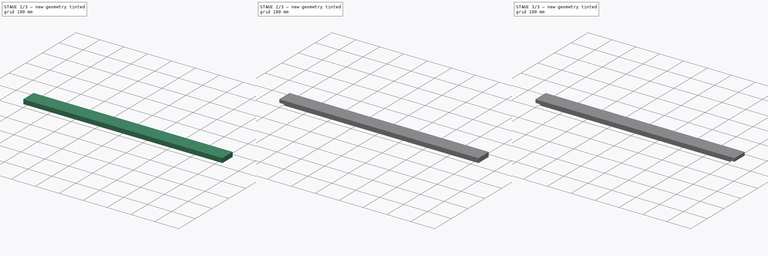
[diagram: build sequence overview — one tinted view per stage of 3, left to right]
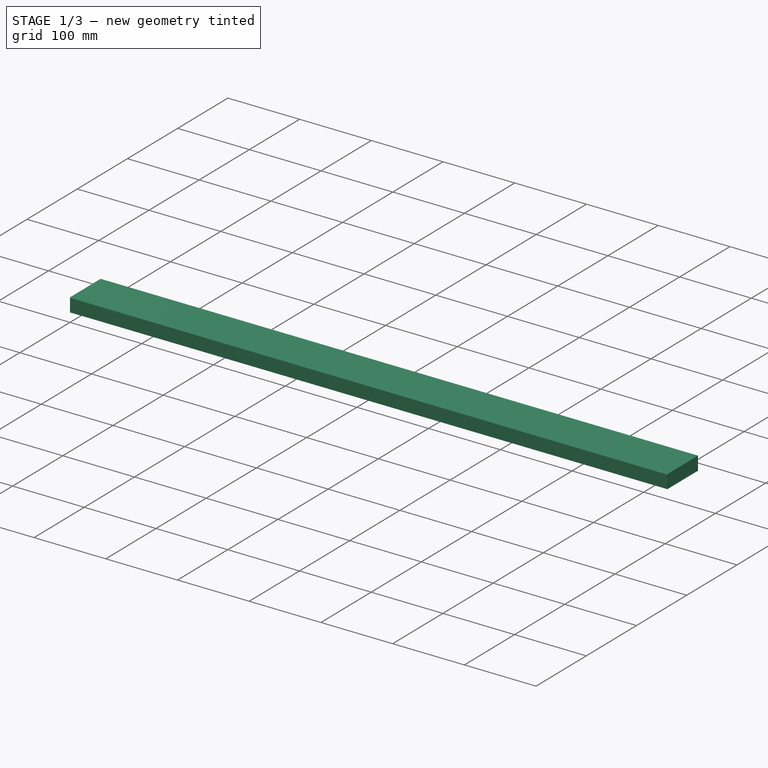
[diagram: stage 1 of 3 — iso view after this stage's code; geometry added in this stage tinted green]
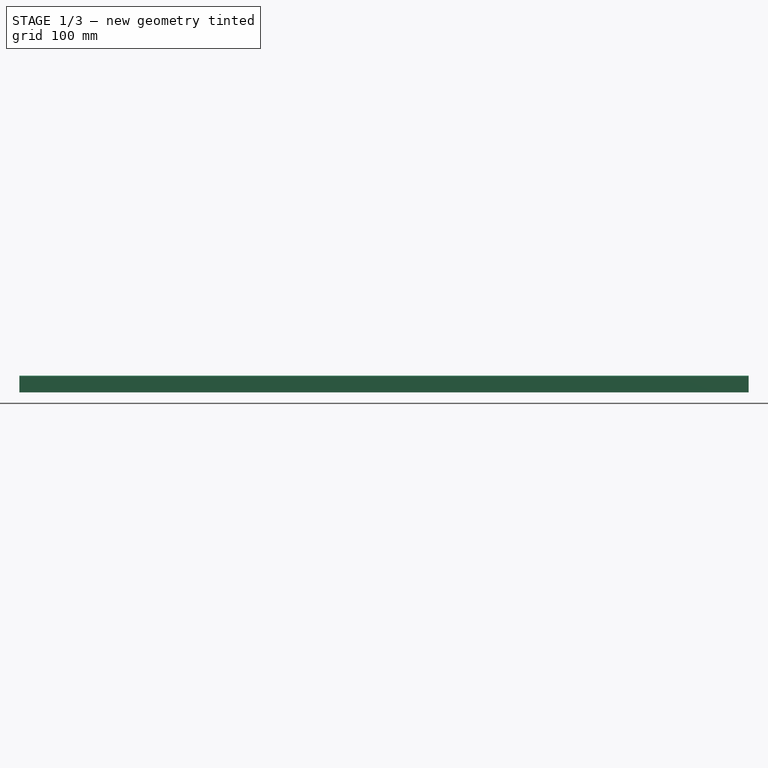
[diagram: stage 1 of 3 — front view after this stage's code; geometry added in this stage tinted green]
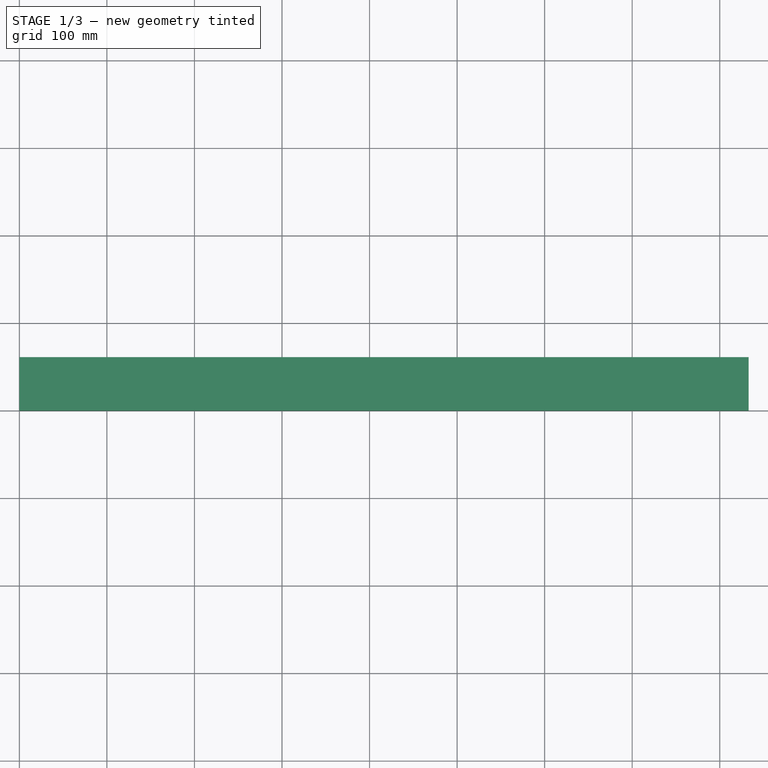
[diagram: stage 1 of 3 — top view after this stage's code; geometry added in this stage tinted green]
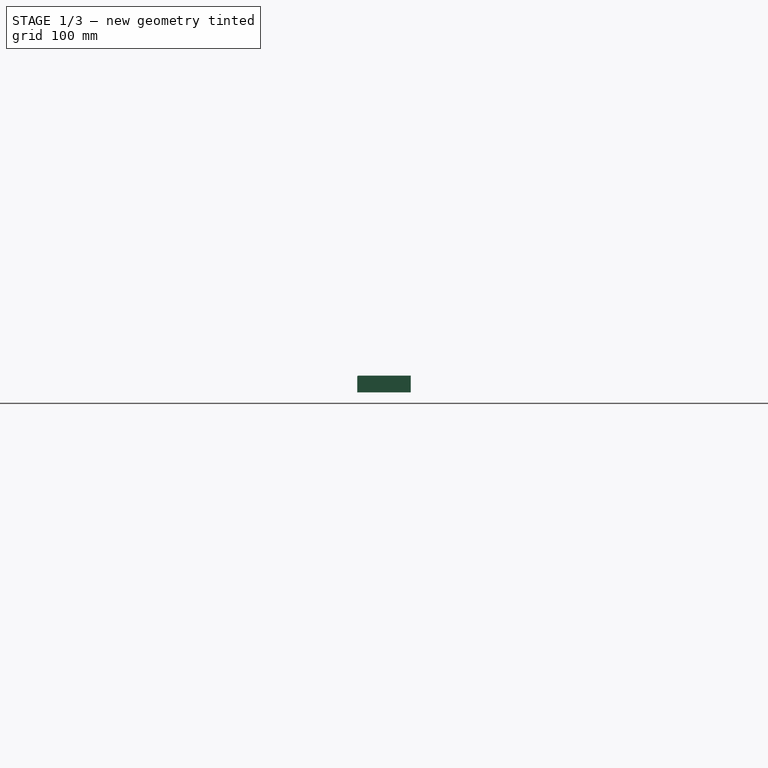
[diagram: stage 1 of 3 — right view after this stage's code; geometry added in this stage tinted green]
FCSTD DOCUMENT  (FreeCAD 0.20R29603 (Git))
Label: PortePartition
License: All rights reserved
LicenseURL: http://en.wikipedia.org/wiki/All_rights_reserved
objects: Drawing::FeatureViewPython×11, Drawing::FeatureViewPart×4, Part::Fillet×2, Sketcher::SketchObject×2, PartDesign::Pocket×2, Part::Box×1, PartDesign::Fillet×1, Drawing::FeaturePage×1
note: 11 computed .brp shape members not serialized (recipe doc carries the construction recipe); baked Part::Feature solids carry a one-line shape summary decoded from their .brp

FEATURE [Part::Box] Box  label="Cube"
  AttacherType = Attacher::AttachEngine3D
  Height = 19
  Length = 833
  Width = 61
FEATURE [Part::Fillet] Fillet
  Base = -> Box
  Edges = 1 edges r=1: [Edge10]
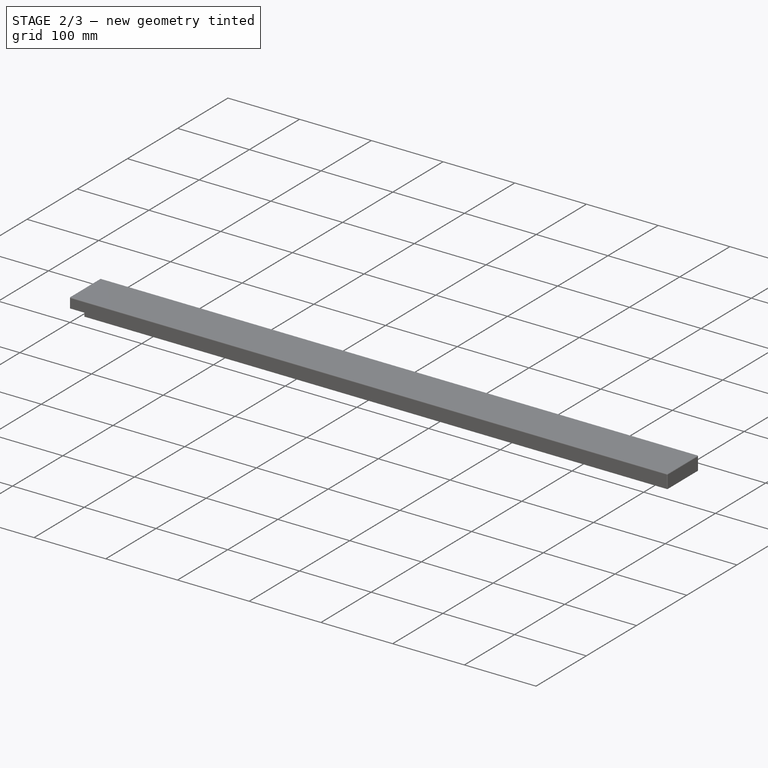
[diagram: stage 2 of 3 — iso view after this stage's code; geometry added in this stage tinted green]
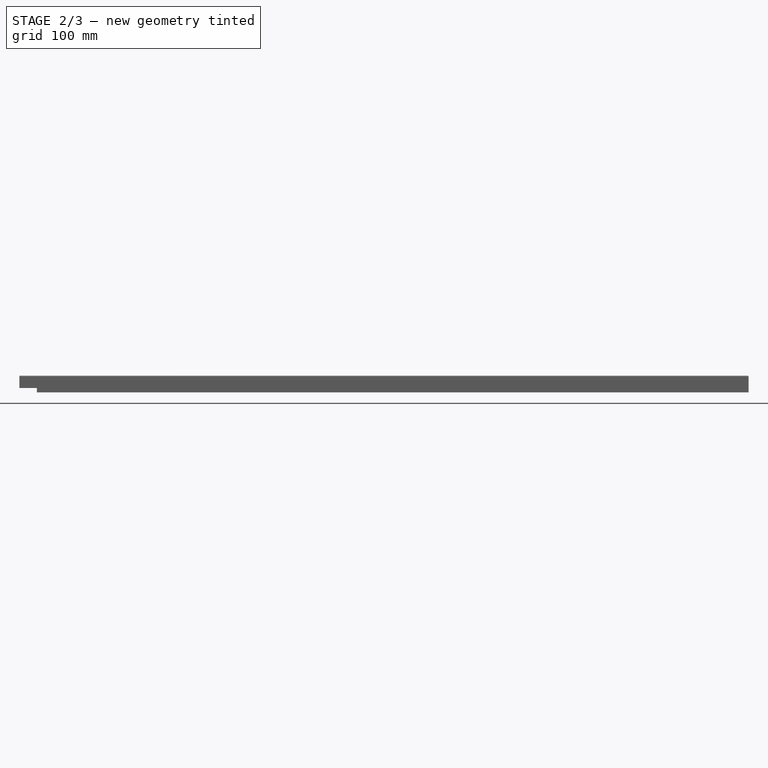
[diagram: stage 2 of 3 — front view after this stage's code; geometry added in this stage tinted green]
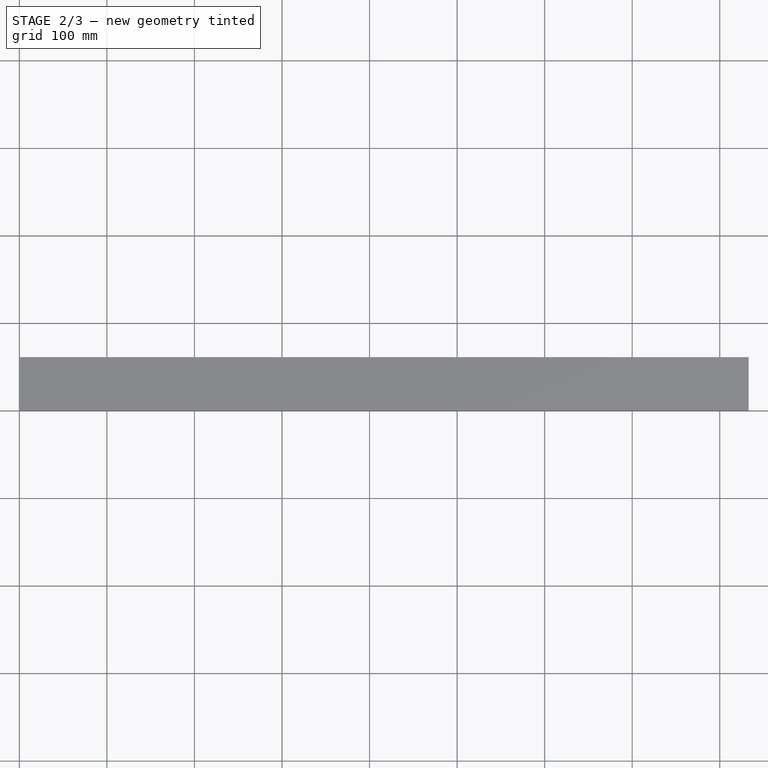
[diagram: stage 2 of 3 — top view after this stage's code; geometry added in this stage tinted green]
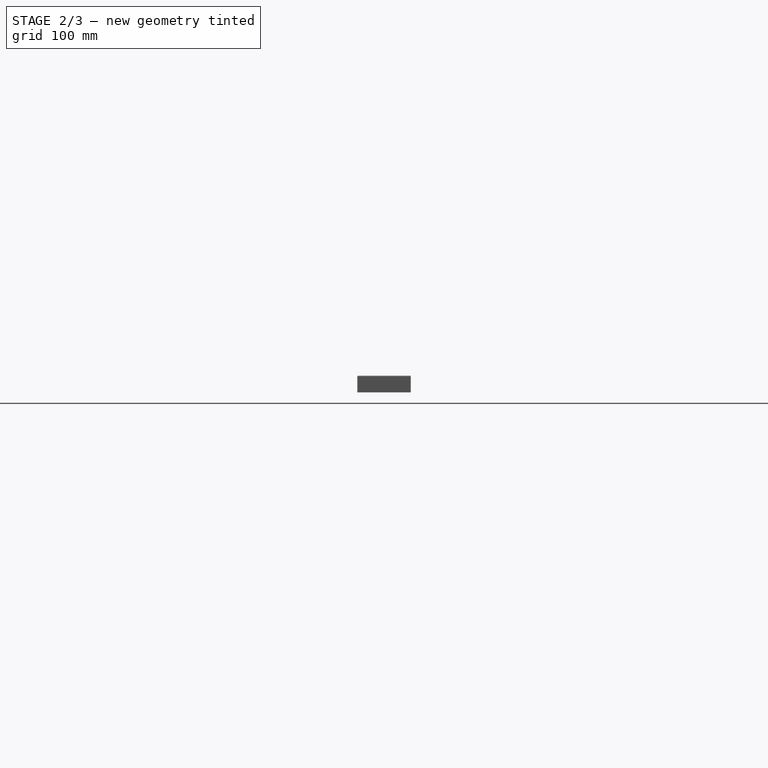
[diagram: stage 2 of 3 — right view after this stage's code; geometry added in this stage tinted green]
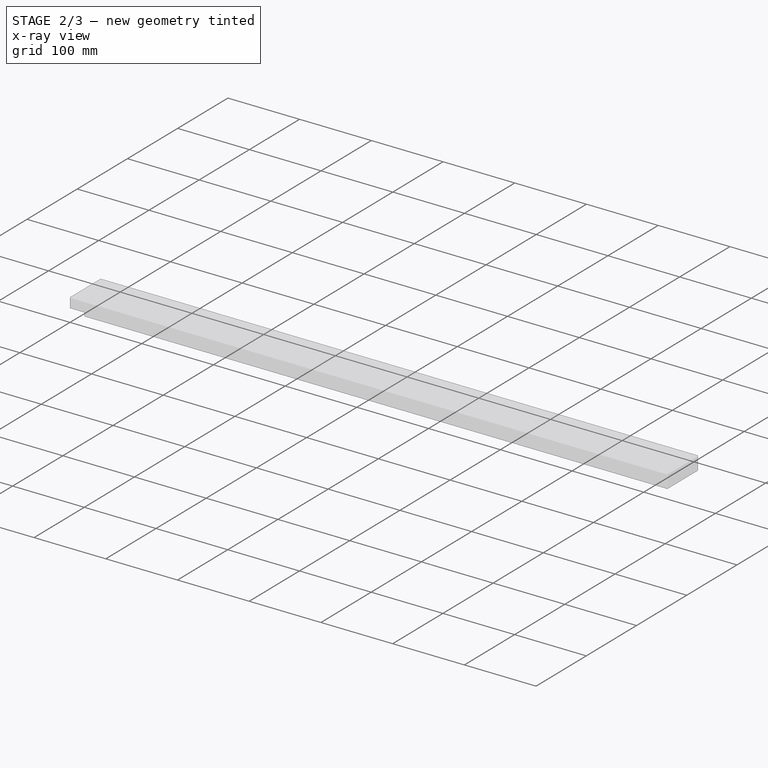
[diagram: stage 2 of 3 — x-ray composite at the iso view; earlier geometry ghosted, this stage's added geometry solid]
FEATURE [Part::Fillet] Fillet001
  Base = -> Fillet
  Edges = 1 edges r=1: [Edge14]
FEATURE [Sketcher::SketchObject] Sketch
  FullyConstrained = true
  MapMode = 5
  Placement = pos=(0,0,0) rot=(1,0,0;3.14159rad)
  Support = -> [Fillet001]
  sketch-geometry (4):
    g0: LineSegment StartX=0 StartY=0 StartZ=0 EndX=20 EndY=0 EndZ=0
    g1: LineSegment StartX=20 StartY=0 StartZ=0 EndX=20 EndY=-63 EndZ=0
    g2: LineSegment StartX=20 StartY=-63 StartZ=0 EndX=0 EndY=-63 EndZ=0
    g3: LineSegment StartX=0 StartY=-63 StartZ=0 EndX=0 EndY=0 EndZ=0
  constraints (11):
    c: Coincident(g0,g1)
    c: Coincident(g1,g2)
    c: Coincident(g2,g3)
    c: Coincident(g3,g0)
    c: Horizontal(g0)
    c: Horizontal(g2)
    c: Vertical(g1)
    c: Vertical(g3)
    c: Coincident(g0,g-1)
    c: DistanceY(g1,g1) = 63
    c: DistanceX(g2,g2) = 20
FEATURE [PartDesign::Pocket] Pocket
  AllowMultiFace = false
  Direction = (0,0,1)
  Length = 5
  Length2 = 100
  Profile = -> Sketch
  Refine = true
  Type = 0
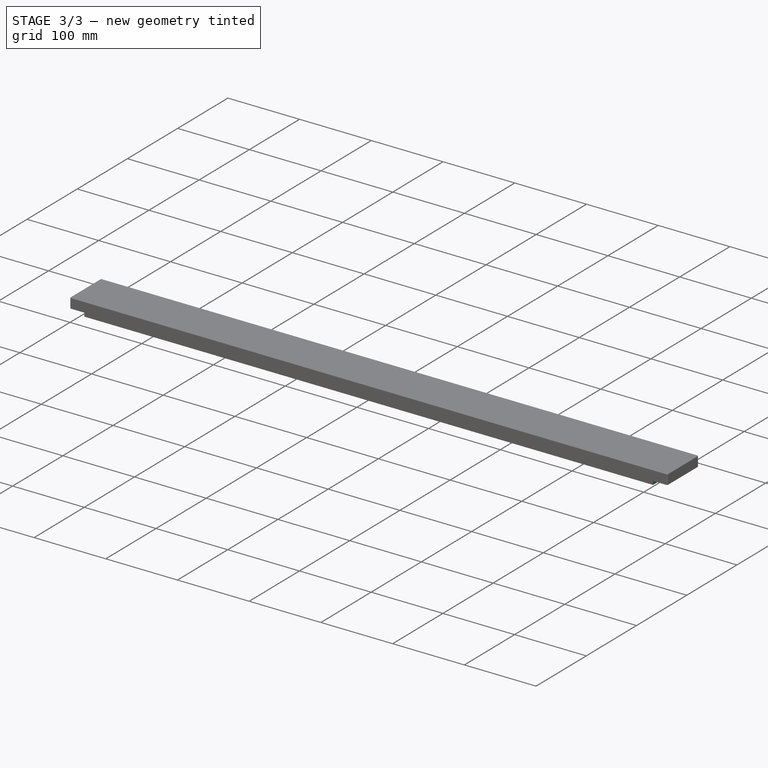
[diagram: stage 3 of 3 — iso view after this stage's code; geometry added in this stage tinted green]
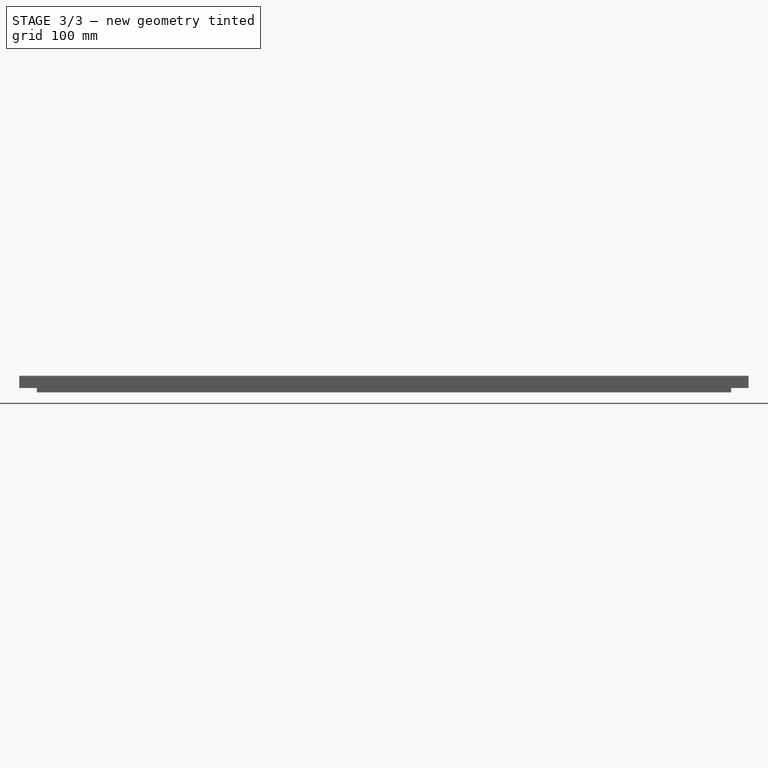
[diagram: stage 3 of 3 — front view after this stage's code; geometry added in this stage tinted green]
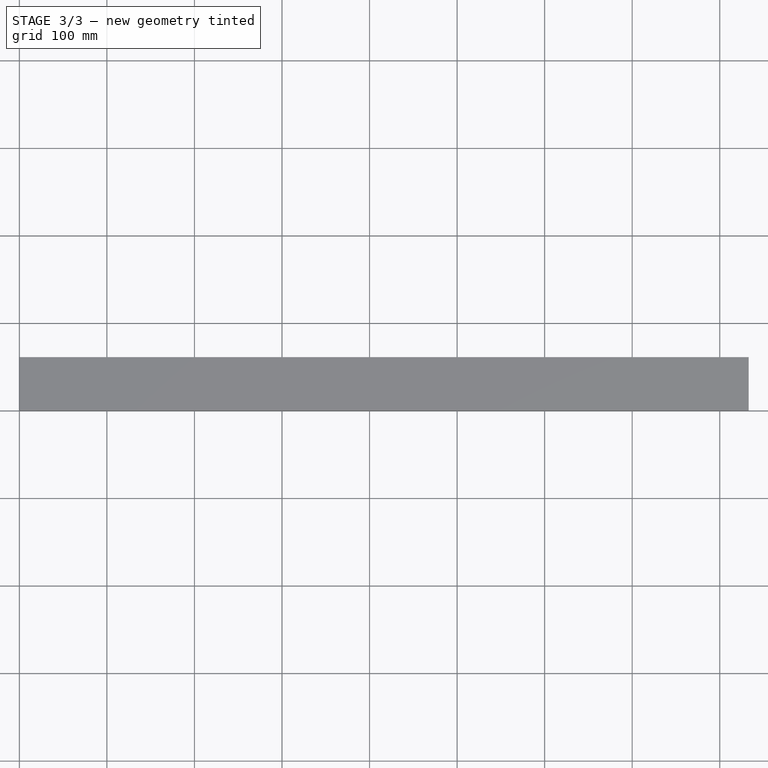
[diagram: stage 3 of 3 — top view after this stage's code; geometry added in this stage tinted green]
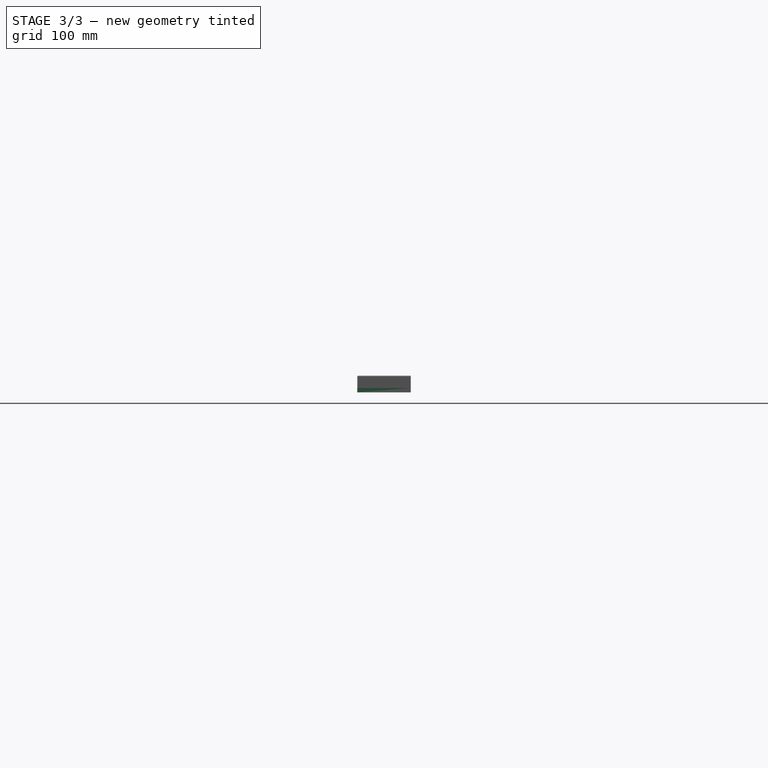
[diagram: stage 3 of 3 — right view after this stage's code; geometry added in this stage tinted green]
FEATURE [Sketcher::SketchObject] Sketch001
  FullyConstrained = true
  MapMode = 5
  Placement = pos=(0,0,0) rot=(1,0,0;3.14159rad)
  Support = -> [Pocket]
  sketch-geometry (4):
    g0: LineSegment StartX=813 StartY=0 StartZ=0 EndX=833 EndY=0 EndZ=0
    g1: LineSegment StartX=833 StartY=0 StartZ=0 EndX=833 EndY=-63 EndZ=0
    g2: LineSegment StartX=833 StartY=-63 StartZ=0 EndX=813 EndY=-63 EndZ=0
    g3: LineSegment StartX=813 StartY=-63 StartZ=0 EndX=813 EndY=0 EndZ=0
  constraints (12):
    c: Coincident(g0,g1)
    c: Coincident(g1,g2)
    c: Coincident(g2,g3)
    c: Coincident(g3,g0)
    c: Horizontal(g0)
    c: Horizontal(g2)
    c: Vertical(g1)
    c: Vertical(g3)
    c: DistanceY(g0,g-1) = 0
    c: DistanceY(g1,g1) = 63
    c: DistanceX(g2,g2) = 20
    c: DistanceX(g-1,g0) = 813
FEATURE [PartDesign::Pocket] Pocket001
  AllowMultiFace = false
  Direction = (0,0,1)
  Length = 5
  Length2 = 100
  Profile = -> Sketch001
  Refine = true
  Type = 0
FEATURE [PartDesign::Fillet] Fillet002
  Base = -> Pocket001 [Edge2]
  Radius = 1
  SupportTransform = false
  UseAllEdges = false
FEATURE [Drawing::FeatureViewPart] Ortho  label="Ortho_0_0"
  Direction = (0,0,1)
  HiddenWidth = 0.15
  LineWidth = 0.35
  Rotation = 0
  Scale = 0.25
  ShowHiddenLines = false
  ShowSmoothLines = true
  Source = -> Fillet002
  Tolerance = 0.05
  ViewResult = <blob: 2794 chars omitted>
  Visible = false
  X = 31.4167
  Y = 74.8
FEATURE [Drawing::FeatureViewPart] Ortho001  label="Ortho_0_1"
  Direction = (0,-1,0)
  HiddenWidth = 0.15
  LineWidth = 0.35
  Rotation = 90
  Scale = 0.25
  ShowHiddenLines = false
  ShowSmoothLines = true
  Source = -> Fillet002
  Tolerance = 0.05
  ViewResult = <blob: 2636 chars omitted>
  Visible = false
  X = 31.4167
  Y = 36.9
FEATURE [Drawing::FeatureViewPart] Ortho002  label="Ortho_0_-2"
  Direction = (0,0,-1)
  HiddenWidth = 0.15
  LineWidth = 0.35
  Rotation = 180
  Scale = 0.25
  ShowHiddenLines = false
  ShowSmoothLines = true
  Source = -> Fillet002
  Tolerance = 0.05
  ViewResult = <g id="Ortho_0_-2"\n   transform="rotate(180,31.4167,124.1) translate(31.4167,124.1) scale(0.25,0.25)"\n  >\n<g   fill="none"\n   stroke="rgb(0, 0, 0)"\n   stroke-linecap="butt"\n   stroke-linejoin="miter"\n   stroke-width="1.400000"\n   transform="scale(1,-1)"\n  >\n<path id= "1" d=" M -1 0 L -20 0 " />\n<path id= "2" d=" M -813 0 L -832 0 " />\n<path id= "3" d=" M -20 0 L -813 0 " />\n<path d="M-1 -2.22045e-16 A1 1 0 0 1 2.22045e-16 1" /><path d="M-832 -2.22045e-16 A1 1 0 0 0 -833 1" /><path id= "6" d=" M 0 61 L 0 1 " />\n<path id= "7" d=" M 0 61 L -20 61 " />\n<path id= "8" d=" M -813 61 L -833 61 " />\n<path id= "9" d=" M -833 1 L -833 61 " />\n<path id= "10" d=" M -20 0 L -20 61 " />\n<path id= "11" d=" M -813 61 L -813 0 " />\n<path id= "12" d=" M -20 61 L -813 61 " />\n</g>\n</g>
  Visible = false
  X = 31.4167
  Y = 124.1
FEATURE [Drawing::FeatureViewPart] Ortho003  label="Ortho_1_0"
  Direction = (-1,0,0)
  HiddenWidth = 0.15
  LineWidth = 0.35
  Rotation = 180
  Scale = 0.25
  ShowHiddenLines = false
  ShowSmoothLines = true
  Source = -> Fillet002
  Tolerance = 0.05
  ViewResult = <blob: 2631 chars omitted>
  Visible = false
  X = 261.083
  Y = 74.8
FEATURE [Drawing::FeatureViewPython] dim001  # drawing view (typed FeaturePython)
  Rotation = 0
  ViewResult = <g> \n  <line x1="31.416700" y1="141.850000" x2="31.416700" y2="151.417742" style="stroke:rgb(0,0,255);stroke-width:0.30" />\n<line x1="239.666700" y1="141.850000" x2="239.666700" y2="151.417742" style="stroke:rgb(0,0,255);stroke-width:0.30" />\n<line x1="31.416700" y1="150.417742" x2="239.666700" y2="150.417742" style="stroke:rgb(0,0,255);stroke-width:0.30" /> \n  <polygon points="239.666700,150.417742 236.666700,149.417742 235.666700,150.417742 236.666700,151.417742" style="fill:rgb(0,0,255);stroke:rgb(0,0,255);stroke-width:0" /><polygon points="31.416700,150.417742 34.416700,151.417742 35.416700,150.417742 34.416700,149.417742" style="fill:rgb(0,0,255);stroke:rgb(0,0,255);stroke-width:0" /> \n  <text x="135.541700" y="148.417742" font-family="Verdana" font-size="3.6" fill="rgb(0,0,255)" text-anchor="middle" transform="rotate(0.000000 135.541700,148.417742)" >833</text> </g>
  Visible = true
  X = 0
  Y = 0
  arrowL1 = 3
  arrowL2 = 1
  arrowW = 2
  arrow_scheme = 0
  autoPlaceOffset = 2
  autoPlaceText = true
  click1_x = 235
  click1_y = 150.418
  click2_x = 235
  click2_y = 150.418
  comma_decimal_place = false
  dimension_line_overshoot = 1
  gap_datum_points = 2
  halfDimension_linear = false
  lineColor = rgb(0,0,255)
  strokeWidth = 0.3
  textFormat_linear = %(value)3.0f
  textRenderer_color = rgb(0,0,255)
  textRenderer_family = Verdana
  textRenderer_size = 3.6
  unit_custom_scale = 1
  unit_scheme = 0
FEATURE [Drawing::FeatureViewPython] dim002  # drawing view (typed FeaturePython)
  Rotation = 0
  ViewResult = <g> <line x1="31.416700" y1="122.350000" x2="31.416700" y2="108.772581" style="stroke:rgb(0,0,255);stroke-width:0.30" />\n<line x1="36.416700" y1="122.100000" x2="36.416700" y2="108.772581" style="stroke:rgb(0,0,255);stroke-width:0.30" />\n<line x1="31.416700" y1="109.772581" x2="36.416700" y2="109.772581" style="stroke:rgb(0,0,255);stroke-width:0.30" />\n<polygon points="31.416700,109.772581 28.416700,108.772581 27.416700,109.772581 28.416700,110.772581" style="fill:rgb(0,0,255);stroke:rgb(0,0,255);stroke-width:0" />\n<polygon points="36.416700,109.772581 39.416700,110.772581 40.416700,109.772581 39.416700,108.772581" style="fill:rgb(0,0,255);stroke:rgb(0,0,255);stroke-width:0" />\n<text x="33.916700" y="107.772581" font-family="Verdana" font-size="3.6" fill="rgb(0,0,255)" text-anchor="middle" transform="rotate(-0.000000 33.916700,107.772581)" > 20</text> </g> 
  Visible = true
  X = 0
  Y = 0
  arrowL1 = 3
  arrowL2 = 1
  arrowW = 2
  arrow_scheme = 0
  autoPlaceOffset = 2
  autoPlaceText = true
  click1_x = 50
  click1_y = 109.773
  click2_x = 50
  click2_y = 109.773
  comma_decimal_place = false
  dimension_line_overshoot = 1
  gap_datum_points = 2
  halfDimension_linear = false
  lineColor = rgb(0,0,255)
  strokeWidth = 0.3
  textFormat_linear = %(value)3.0f
  textRenderer_color = rgb(0,0,255)
  textRenderer_family = Verdana
  textRenderer_size = 3.6
  unit_custom_scale = 1
  unit_scheme = 0
FEATURE [Drawing::FeatureViewPython] dim003  # drawing view (typed FeaturePython)
  Rotation = 0
  ViewResult = <g> <line x1="239.666700" y1="122.350000" x2="239.666700" y2="108.772581" style="stroke:rgb(0,0,255);stroke-width:0.30" />\n<line x1="234.666700" y1="122.100000" x2="234.666700" y2="108.772581" style="stroke:rgb(0,0,255);stroke-width:0.30" />\n<line x1="239.666700" y1="109.772581" x2="234.666700" y2="109.772581" style="stroke:rgb(0,0,255);stroke-width:0.30" />\n<polygon points="239.666700,109.772581 242.666700,110.772581 243.666700,109.772581 242.666700,108.772581" style="fill:rgb(0,0,255);stroke:rgb(0,0,255);stroke-width:0" />\n<polygon points="234.666700,109.772581 231.666700,108.772581 230.666700,109.772581 231.666700,110.772581" style="fill:rgb(0,0,255);stroke:rgb(0,0,255);stroke-width:0" />\n<text x="237.166700" y="107.772581" font-family="Verdana" font-size="3.6" fill="rgb(0,0,255)" text-anchor="middle" transform="rotate(0.000000 237.166700,107.772581)" > 20</text> </g> 
  Visible = true
  X = 0
  Y = 0
  arrowL1 = 3
  arrowL2 = 1
  arrowW = 2
  arrow_scheme = 0
  autoPlaceOffset = 2
  autoPlaceText = true
  click1_x = 235
  click1_y = 109.773
  click2_x = 235
  click2_y = 109.773
  comma_decimal_place = false
  dimension_line_overshoot = 1
  gap_datum_points = 2
  halfDimension_linear = false
  lineColor = rgb(0,0,255)
  strokeWidth = 0.3
  textFormat_linear = %(value)3.0f
  textRenderer_color = rgb(0,0,255)
  textRenderer_family = Verdana
  textRenderer_size = 3.6
  unit_custom_scale = 1
  unit_scheme = 0
FEATURE [Drawing::FeatureViewPython] dim004  # drawing view (typed FeaturePython)
  Rotation = 0
  ViewResult = <g> \n  <line x1="236.666700" y1="139.850000" x2="251.000000" y2="139.850000" style="stroke:rgb(0,0,255);stroke-width:0.30" />\n<line x1="236.666700" y1="124.100000" x2="251.000000" y2="124.100000" style="stroke:rgb(0,0,255);stroke-width:0.30" />\n<line x1="250.000000" y1="139.850000" x2="250.000000" y2="124.100000" style="stroke:rgb(0,0,255);stroke-width:0.30" /> \n  <polygon points="250.000000,124.100000 249.000000,127.100000 250.000000,128.100000 251.000000,127.100000" style="fill:rgb(0,0,255);stroke:rgb(0,0,255);stroke-width:0" /><polygon points="250.000000,139.850000 251.000000,136.850000 250.000000,135.850000 249.000000,136.850000" style="fill:rgb(0,0,255);stroke:rgb(0,0,255);stroke-width:0" /> \n  <text x="248.000000" y="131.975000" font-family="Verdana" font-size="3.6" fill="rgb(0,0,255)" text-anchor="middle" transform="rotate(-90.000000 248.000000,131.975000)" > 63</text> </g>
  Visible = true
  X = 0
  Y = 0
  arrowL1 = 3
  arrowL2 = 1
  arrowW = 2
  arrow_scheme = 0
  autoPlaceOffset = 2
  autoPlaceText = true
  click1_x = 250
  click1_y = 125.015
  click2_x = 250
  click2_y = 125.015
  comma_decimal_place = false
  dimension_line_overshoot = 1
  gap_datum_points = 2
  halfDimension_linear = false
  lineColor = rgb(0,0,255)
  strokeWidth = 0.3
  textFormat_linear = %(value)3.0f
  textRenderer_color = rgb(0,0,255)
  textRenderer_family = Verdana
  textRenderer_size = 3.6
  unit_custom_scale = 1
  unit_scheme = 0
FEATURE [Drawing::FeatureViewPython] dim005  # drawing view (typed FeaturePython)
  Rotation = 0
  ViewResult = <g> <line x1="241.416700" y1="36.400000" x2="251.000000" y2="36.400000" style="stroke:rgb(0,0,255);stroke-width:0.30" />\n<line x1="236.666700" y1="36.900000" x2="251.000000" y2="36.900000" style="stroke:rgb(0,0,255);stroke-width:0.30" />\n<line x1="250.000000" y1="36.400000" x2="250.000000" y2="36.900000" style="stroke:rgb(0,0,255);stroke-width:0.30" />\n<polygon points="250.000000,36.400000 251.000000,33.400000 250.000000,32.400000 249.000000,33.400000" style="fill:rgb(0,0,255);stroke:rgb(0,0,255);stroke-width:0" />\n<polygon points="250.000000,36.900000 249.000000,39.900000 250.000000,40.900000 251.000000,39.900000" style="fill:rgb(0,0,255);stroke:rgb(0,0,255);stroke-width:0" />\n<text x="248.000000" y="36.650000" font-family="Verdana" font-size="3.6" fill="rgb(0,0,255)" text-anchor="middle" transform="rotate(-90.000000 248.000000,36.650000)" >  2</text> </g> 
  Visible = true
  X = 0
  Y = 0
  arrowL1 = 3
  arrowL2 = 1
  arrowW = 2
  arrow_scheme = 0
  autoPlaceOffset = 2
  autoPlaceText = true
  click1_x = 250
  click1_y = 34.8944
  click2_x = 250
  click2_y = 34.8944
  comma_decimal_place = false
  dimension_line_overshoot = 1
  gap_datum_points = 2
  halfDimension_linear = false
  lineColor = rgb(0,0,255)
  strokeWidth = 0.3
  textFormat_linear = %(value)3.0f
  textRenderer_color = rgb(0,0,255)
  textRenderer_family = Verdana
  textRenderer_size = 3.6
  unit_custom_scale = 1
  unit_scheme = 0
FEATURE [Drawing::FeatureViewPython] dim006  # drawing view (typed FeaturePython)
  Rotation = 0
  ViewResult = <g> <line x1="31.416700" y1="38.400000" x2="31.416700" y2="46.450000" style="stroke:rgb(0,0,255);stroke-width:0.30" />\n<line x1="36.416700" y1="38.900000" x2="36.416700" y2="46.450000" style="stroke:rgb(0,0,255);stroke-width:0.30" />\n<line x1="31.416700" y1="45.450000" x2="36.416700" y2="45.450000" style="stroke:rgb(0,0,255);stroke-width:0.30" />\n<polygon points="31.416700,45.450000 28.416700,44.450000 27.416700,45.450000 28.416700,46.450000" style="fill:rgb(0,0,255);stroke:rgb(0,0,255);stroke-width:0" />\n<polygon points="36.416700,45.450000 39.416700,46.450000 40.416700,45.450000 39.416700,44.450000" style="fill:rgb(0,0,255);stroke:rgb(0,0,255);stroke-width:0" />\n<text x="33.916700" y="43.450000" font-family="Verdana" font-size="3.6" fill="rgb(0,0,255)" text-anchor="middle" transform="rotate(0.000000 33.916700,43.450000)" > 20</text> </g> 
  Visible = true
  X = 0
  Y = 0
  arrowL1 = 3
  arrowL2 = 1
  arrowW = 2
  arrow_scheme = 0
  autoPlaceOffset = 2
  autoPlaceText = true
  click1_x = 35
  click1_y = 45.45
  click2_x = 35
  click2_y = 45.45
  comma_decimal_place = false
  dimension_line_overshoot = 1
  gap_datum_points = 2
  halfDimension_linear = false
  lineColor = rgb(0,0,255)
  strokeWidth = 0.3
  textFormat_linear = %(value)3.0f
  textRenderer_color = rgb(0,0,255)
  textRenderer_family = Verdana
  textRenderer_size = 3.6
  unit_custom_scale = 1
  unit_scheme = 0
FEATURE [Drawing::FeatureViewPython] noteCircle001  # drawing view (typed FeaturePython)
  Rotation = 0
  ViewResult = <g> <line x1="120.000000" y1="95.325806" x2="135.541700" y2="74.550000" style="stroke:rgb(0,0,255);stroke-width:0.30" />\n<line x1="120.000000" y1="95.325806" x2="140.000000" y2="95.325806" style="stroke:rgb(0,0,255);stroke-width:0.30" />\n <circle cx ="140.000000" cy ="95.325806" r="4.500000" stroke="rgb(0,0,255)" fill="rgb(255,255,255)" /> \n<text x="138.500000" y="96.825806" font-family="inherit" font-size="5" fill="rgb(0,150,0)" text-anchor="inherit"  >1</text> </g>
  Visible = true
  X = 0
  Y = 0
  click1_x = 120
  click1_y = 95.3258
  click2_x = 140
  click2_y = 95.3258
  lineColor = rgb(0,0,255)
  noteCircle_fill = rgb(255,255,255)
  noteCircle_radius = 4.5
  noteText = 1
  strokeWidth = 0.3
  textRenderer_noteCircle_color = rgb(0,150,0)
  textRenderer_noteCircle_family = inherit
  textRenderer_noteCircle_size = 5
FEATURE [Drawing::FeatureViewPython] noteCircle002  # drawing view (typed FeaturePython)
  Rotation = 0
  ViewResult = <g> <line x1="20.000000" y1="85.164516" x2="31.666700" y2="66.800000" style="stroke:rgb(0,0,255);stroke-width:0.30" />\n<line x1="20.000000" y1="85.164516" x2="40.000000" y2="85.164516" style="stroke:rgb(0,0,255);stroke-width:0.30" />\n <circle cx ="40.000000" cy ="85.164516" r="4.500000" stroke="rgb(0,0,255)" fill="rgb(255,255,255)" /> \n<text x="38.500000" y="86.664516" font-family="inherit" font-size="5" fill="rgb(0,150,0)" text-anchor="inherit"  >2</text> </g>
  Visible = true
  X = 0
  Y = 0
  click1_x = 20
  click1_y = 85.1645
  click2_x = 40
  click2_y = 85.1645
  lineColor = rgb(0,0,255)
  noteCircle_fill = rgb(255,255,255)
  noteCircle_radius = 4.5
  noteText = 2
  strokeWidth = 0.3
  textRenderer_noteCircle_color = rgb(0,150,0)
  textRenderer_noteCircle_family = inherit
  textRenderer_noteCircle_size = 5
FEATURE [Drawing::FeatureViewPython] noteCircle003  # drawing view (typed FeaturePython)
  Rotation = 0
  ViewResult = <g> <line x1="220.000000" y1="90.245161" x2="239.416700" y2="66.800000" style="stroke:rgb(0,0,255);stroke-width:0.30" />\n<line x1="220.000000" y1="90.245161" x2="240.000000" y2="90.245161" style="stroke:rgb(0,0,255);stroke-width:0.30" />\n <circle cx ="240.000000" cy ="90.245161" r="4.500000" stroke="rgb(0,0,255)" fill="rgb(255,255,255)" /> \n<text x="238.500000" y="91.745161" font-family="inherit" font-size="5" fill="rgb(0,150,0)" text-anchor="inherit"  >3</text> </g>
  Visible = true
  X = 0
  Y = 0
  click1_x = 220
  click1_y = 90.2452
  click2_x = 240
  click2_y = 90.2452
  lineColor = rgb(0,0,255)
  noteCircle_fill = rgb(255,255,255)
  noteCircle_radius = 4.5
  noteText = 3
  strokeWidth = 0.3
  textRenderer_noteCircle_color = rgb(0,150,0)
  textRenderer_noteCircle_family = inherit
  textRenderer_noteCircle_size = 5
FEATURE [Drawing::FeatureViewPython] dim007  # drawing view (typed FeaturePython)
  Rotation = 0
  ViewResult = <g> \n  <line x1="29.666700" y1="32.151575" x2="19.000000" y2="32.151575" style="stroke:rgb(0,0,255);stroke-width:0.30" />\n<line x1="29.416700" y1="36.400000" x2="19.000000" y2="36.400000" style="stroke:rgb(0,0,255);stroke-width:0.30" />\n<line x1="20.000000" y1="32.151575" x2="20.000000" y2="36.400000" style="stroke:rgb(0,0,255);stroke-width:0.30" /> \n  <polygon points="20.000000,36.400000 19.000000,39.400000 20.000000,40.400000 21.000000,39.400000" style="fill:rgb(0,0,255);stroke:rgb(0,0,255);stroke-width:0" /><polygon points="20.000000,32.151575 21.000000,29.151575 20.000000,28.151575 19.000000,29.151575" style="fill:rgb(0,0,255);stroke:rgb(0,0,255);stroke-width:0" /> \n  <text x="18.000000" y="34.275787" font-family="Verdana" font-size="3.6" fill="rgb(0,0,255)" text-anchor="middle" transform="rotate(-90.000000 18.000000,34.275787)" > 17</text> </g>
  Visible = true
  X = 0
  Y = 0
  arrowL1 = 3
  arrowL2 = 1
  arrowW = 2
  arrow_scheme = 0
  autoPlaceOffset = 2
  autoPlaceText = true
  click1_x = 20
  click1_y = 34.8944
  click2_x = 20
  click2_y = 34.8944
  comma_decimal_place = false
  dimension_line_overshoot = 1
  gap_datum_points = 2
  halfDimension_linear = false
  lineColor = rgb(0,0,255)
  strokeWidth = 0.3
  textFormat_linear = %(value)3.0f
  textRenderer_color = rgb(0,0,255)
  textRenderer_family = Verdana
  textRenderer_size = 3.6
  unit_custom_scale = 1
  unit_scheme = 0
FEATURE [Drawing::FeatureViewPython] dim008  # drawing view (typed FeaturePython)
  Rotation = 0
  ViewResult = <g> \n  <line x1="261.083000" y1="57.050000" x2="261.083000" y2="49.000000" style="stroke:rgb(0,0,255);stroke-width:0.30" />\n<line x1="265.826725" y1="57.050000" x2="265.826725" y2="49.000000" style="stroke:rgb(0,0,255);stroke-width:0.30" />\n<line x1="261.083000" y1="50.000000" x2="265.826725" y2="50.000000" style="stroke:rgb(0,0,255);stroke-width:0.30" /> \n  <polygon points="265.826725,50.000000 268.826725,51.000000 269.826725,50.000000 268.826725,49.000000" style="fill:rgb(0,0,255);stroke:rgb(0,0,255);stroke-width:0" /><polygon points="261.083000,50.000000 258.083000,49.000000 257.083000,50.000000 258.083000,51.000000" style="fill:rgb(0,0,255);stroke:rgb(0,0,255);stroke-width:0" /> \n  <text x="263.454862" y="48.000000" font-family="Verdana" font-size="3.6" fill="rgb(0,0,255)" text-anchor="middle" transform="rotate(0.000000 263.454862,48.000000)" > 19</text> </g>
  Visible = true
  X = 0
  Y = 0
  arrowL1 = 3
  arrowL2 = 1
  arrowW = 2
  arrow_scheme = 0
  autoPlaceOffset = 2
  autoPlaceText = true
  click1_x = 265.218
  click1_y = 50
  click2_x = 265.218
  click2_y = 50
  comma_decimal_place = false
  dimension_line_overshoot = 1
  gap_datum_points = 2
  halfDimension_linear = false
  lineColor = rgb(0,0,255)
  strokeWidth = 0.3
  textFormat_linear = %(value)3.0f
  textRenderer_color = rgb(0,0,255)
  textRenderer_family = Verdana
  textRenderer_size = 3.6
  unit_custom_scale = 1
  unit_scheme = 0
FEATURE [Drawing::FeaturePage] Page
  EditableTexts = GB | Porte partition | 1, 2, 3 : congé 1mm | A4 | X / Y | 1/4 | PN | DN | DD/MM/YYYY | REV A
  Group = -> [Ortho,Ortho001,Ortho002,Ortho003,dim001,dim002,dim003,dim004,dim005,dim006,noteCircle001,noteCircle002,noteCircle003,dim007,dim008]
  Template = <path>
note: 1 file-system path scrubbed to <path> (originals preserved in the JSON sidecar)
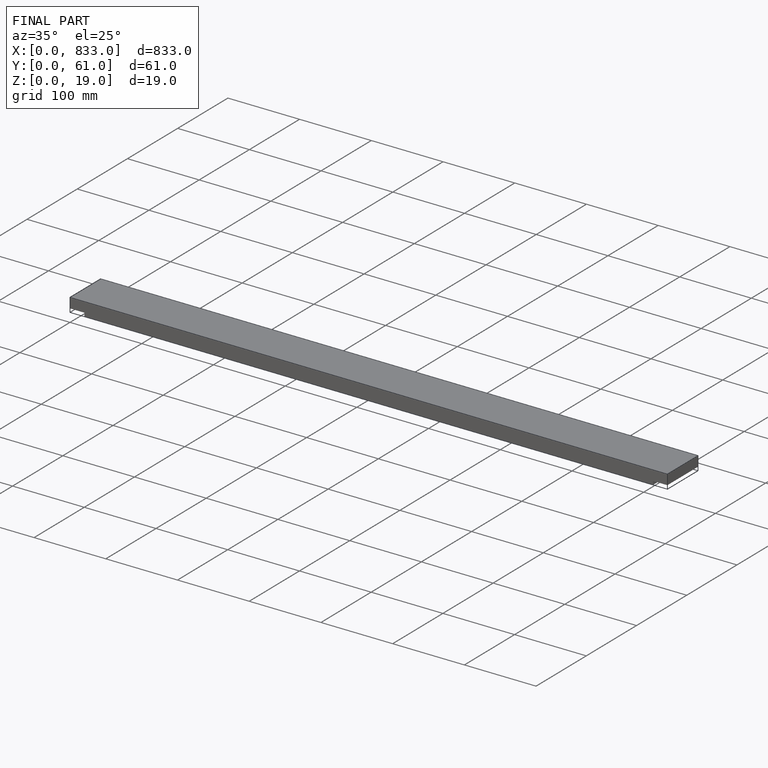
[diagram: finished part — iso view with bounding-box wireframe]
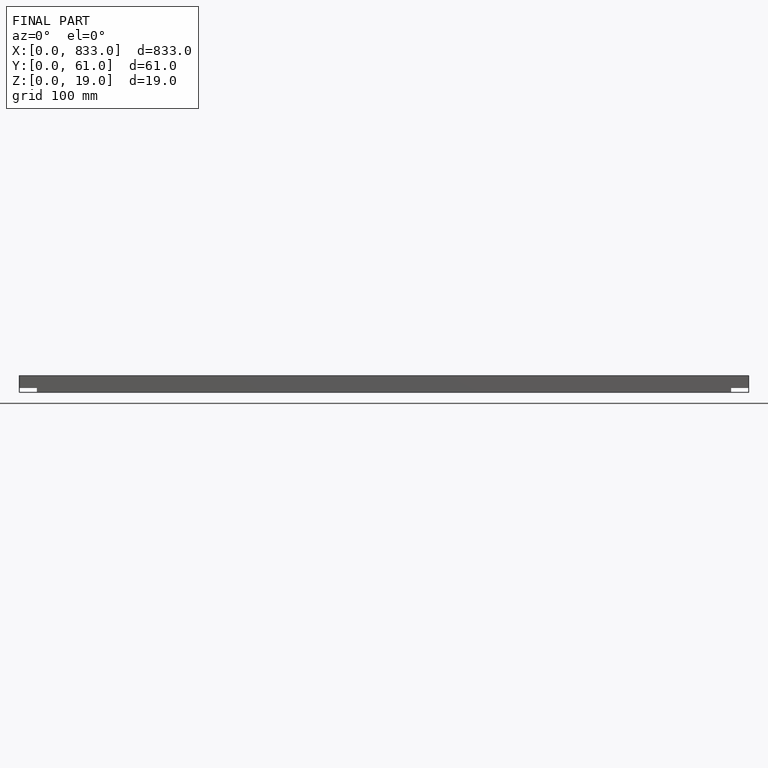
[diagram: finished part — front view with bounding-box wireframe]
